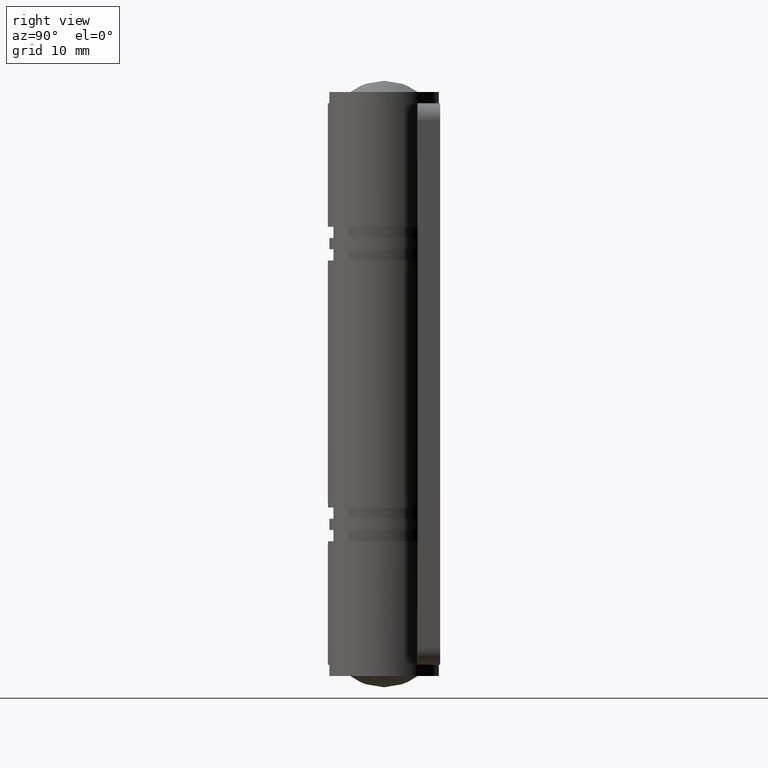
[diagram: clean part render]
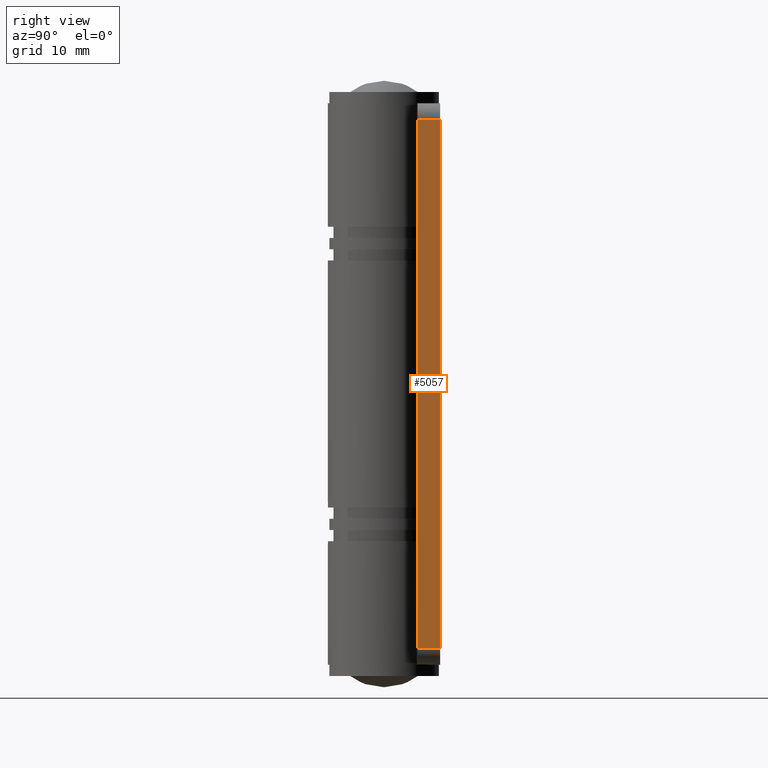
[diagram: same view with one face highlighted and labeled with its STEP entity id]
A machine part, right view. The second image highlights one B-rep face of the part: STEP entity #5057.
In plain terms, the highlighted face is a freeform B-spline surface patch.
Its self-contained STEP definition (entity closure, byte-faithful):
#4706=CARTESIAN_POINT('',(17.499999999952301,5.000000000002700,48.500000000000000));
#4707=VERTEX_POINT('',#4706);
#4728=CARTESIAN_POINT('',(17.500000000002299,3.000000000003335,48.500000000000000));
#4729=VERTEX_POINT('',#4728);
#4743=CARTESIAN_POINT('',(17.499999999952301,5.000000000002700,48.500000000000000));
#4744=CARTESIAN_POINT('',(17.500000000002299,3.000000000003335,48.500000000000000));
#4745=QUASI_UNIFORM_CURVE('',1,(#4743,#4744),.UNSPECIFIED.,.F.,.U.);
#4746=EDGE_CURVE('',#4707,#4729,#4745,.T.);
#4765=CARTESIAN_POINT('',(17.499999999952301,5.000000000002700,1.499999999999946));
#4766=VERTEX_POINT('',#4765);
#4782=CARTESIAN_POINT('',(17.500000000002299,3.000000000003335,1.499999999999946));
#4783=VERTEX_POINT('',#4782);
#4784=CARTESIAN_POINT('',(17.500000000002299,3.000000000003335,1.499999999999946));
#4785=CARTESIAN_POINT('',(17.499999999952301,5.000000000002700,1.499999999999946));
#4786=QUASI_UNIFORM_CURVE('',1,(#4784,#4785),.UNSPECIFIED.,.F.,.U.);
#4787=EDGE_CURVE('',#4783,#4766,#4786,.T.);
#5038=CARTESIAN_POINT('',(17.500000000002700,2.900100003879754,50.847649908904877));
#5039=CARTESIAN_POINT('',(17.500000000002700,2.900100003879754,-0.847651169543174));
#5040=CARTESIAN_POINT('',(17.500000000002700,5.099900049770461,50.847649908904877));
#5041=CARTESIAN_POINT('',(17.500000000002700,5.099900049770461,-0.847651169543174));
#5042=B_SPLINE_SURFACE_WITH_KNOTS('',1,1,((#5038,#5040),(#5039,#5041)),.UNSPECIFIED.,.F.,.F.,.U.,(2,2),(2,2),(0.0,51.695301078448061),(0.0,2.199800045890707),.UNSPECIFIED.);
#5043=CARTESIAN_POINT('',(17.500000000002299,3.000000000003335,48.500000000000000));
#5044=CARTESIAN_POINT('',(17.500000000002299,3.000000000003335,1.499999999999946));
#5045=QUASI_UNIFORM_CURVE('',1,(#5043,#5044),.UNSPECIFIED.,.F.,.U.);
#5046=EDGE_CURVE('',#4729,#4783,#5045,.T.);
#5047=ORIENTED_EDGE('',*,*,#5046,.T.);
#5048=ORIENTED_EDGE('',*,*,#4787,.T.);
#5049=CARTESIAN_POINT('',(17.499999999952301,5.000000000002700,48.500000000000000));
#5050=CARTESIAN_POINT('',(17.499999999952301,5.000000000002700,1.499999999999946));
#5051=QUASI_UNIFORM_CURVE('',1,(#5049,#5050),.UNSPECIFIED.,.F.,.U.);
#5052=EDGE_CURVE('',#4707,#4766,#5051,.T.);
#5053=ORIENTED_EDGE('',*,*,#5052,.F.);
#5054=ORIENTED_EDGE('',*,*,#4746,.T.);
#5055=EDGE_LOOP('',(#5047,#5048,#5053,#5054));
#5056=FACE_OUTER_BOUND('',#5055,.T.);
#5057=ADVANCED_FACE('',(#5056),#5042,.T.);